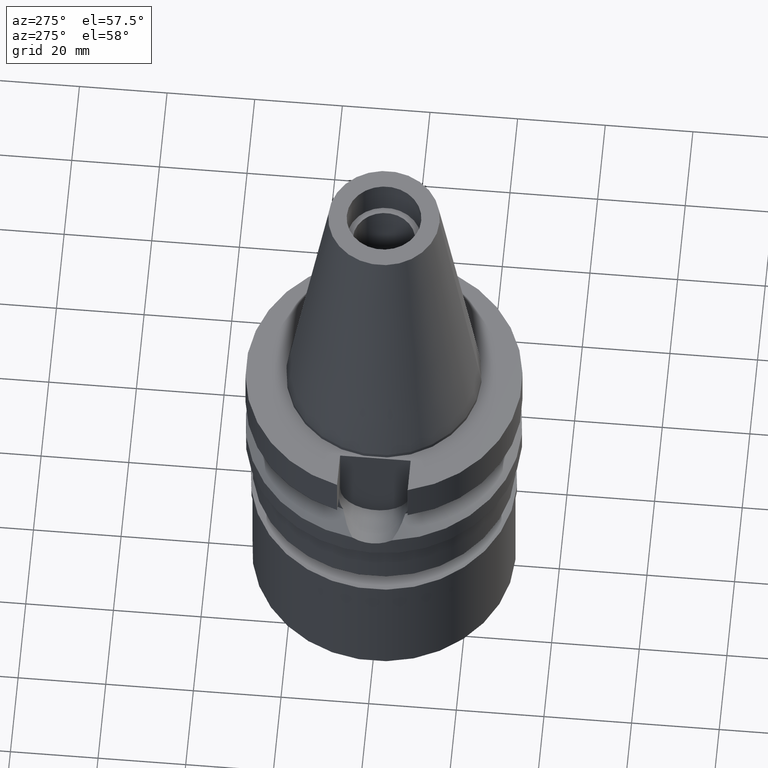
[diagram: clean part render]
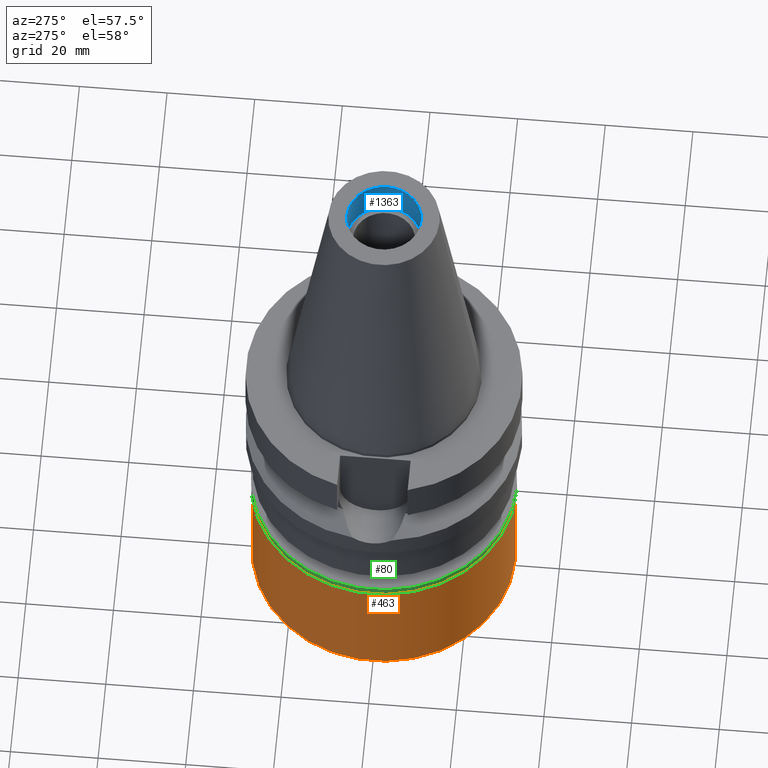
[diagram: same view with three faces highlighted in distinct colors, each labeled with its STEP entity id]
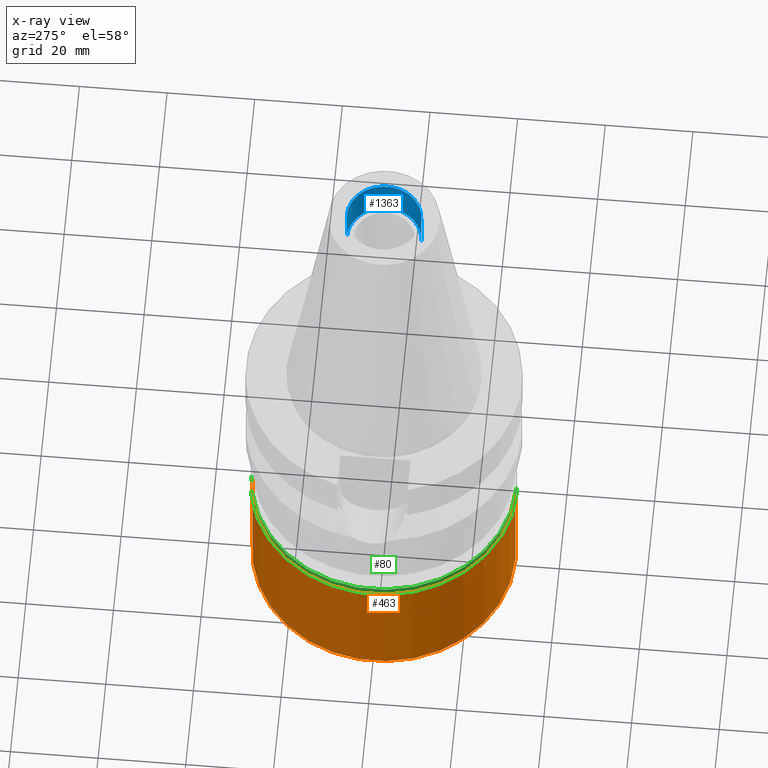
[diagram: x-ray of the same camera — body ghosted, the three highlighted faces saturated]
A machine part, auxiliary view with three faces highlighted in distinct colors.
The next image is the same camera in x-ray (body ghosted, the three faces saturated) — at least one of them is partly hidden behind the body in this view.
Their STEP definitions:

[orange] entity #463 — the highlighted cylindrical surface (partial cylindrical patch) has radius 30 mm, axis along (0, 0, -1).
#134 = DIRECTION ( 'NONE',  ( 0.0000000000000000000, 0.0000000000000000000, 1.000000000000000000 ) ) ;
#184 = ORIENTED_EDGE ( 'NONE', *, *, #843, .T. ) ;
#332 = EDGE_LOOP ( 'NONE', ( #184, #2122, #925, #2883 ) ) ;
#439 = VERTEX_POINT ( 'NONE', #2187 ) ;
#463 = ADVANCED_FACE ( 'NONE', ( #2403 ), #1677, .T. ) ;
#484 = CARTESIAN_POINT ( 'NONE',  ( 0.0000000000000000000, 30.00000000000000000, -30.80000000000000071 ) ) ;
#492 = VERTEX_POINT ( 'NONE', #1116 ) ;
#518 = AXIS2_PLACEMENT_3D ( 'NONE', #1457, #2164, #820 ) ;
#566 = AXIS2_PLACEMENT_3D ( 'NONE', #2522, #704, #2269 ) ;
#639 = LINE ( 'NONE', #2724, #2911 ) ;
#662 = EDGE_CURVE ( 'NONE', #492, #439, #1420, .T. ) ;
#704 = DIRECTION ( 'NONE',  ( 0.0000000000000000000, 0.0000000000000000000, -1.000000000000000000 ) ) ;
#820 = DIRECTION ( 'NONE',  ( 0.0000000000000000000, -1.000000000000000000, 0.0000000000000000000 ) ) ;
#843 = EDGE_CURVE ( 'NONE', #997, #2358, #1279, .T. ) ;
#873 = DIRECTION ( 'NONE',  ( 0.0000000000000000000, 0.0000000000000000000, -1.000000000000000000 ) ) ;
#925 = ORIENTED_EDGE ( 'NONE', *, *, #662, .T. ) ;
#997 = VERTEX_POINT ( 'NONE', #484 ) ;
#1116 = CARTESIAN_POINT ( 'NONE',  ( 0.0000000000000000000, -30.00000000000000000, -2.299999999999999822 ) ) ;
#1279 = CIRCLE ( 'NONE', #2970, 30.00000000000000000 ) ;
#1328 = DIRECTION ( 'NONE',  ( 0.0000000000000000000, 1.000000000000000000, 0.0000000000000000000 ) ) ;
#1420 = CIRCLE ( 'NONE', #566, 30.00000000000000000 ) ;
#1457 = CARTESIAN_POINT ( 'NONE',  ( 0.0000000000000000000, 0.0000000000000000000, 0.0000000000000000000 ) ) ;
#1677 = CYLINDRICAL_SURFACE ( 'NONE', #518, 30.00000000000000000 ) ;
#1785 = DIRECTION ( 'NONE',  ( 0.0000000000000000000, 0.0000000000000000000, -1.000000000000000000 ) ) ;
#1883 = LINE ( 'NONE', #2683, #2961 ) ;
#2122 = ORIENTED_EDGE ( 'NONE', *, *, #2639, .F. ) ;
#2164 = DIRECTION ( 'NONE',  ( 0.0000000000000000000, 0.0000000000000000000, -1.000000000000000000 ) ) ;
#2187 = CARTESIAN_POINT ( 'NONE',  ( 0.0000000000000000000, 30.00000000000000000, -2.299999999999999822 ) ) ;
#2244 = CARTESIAN_POINT ( 'NONE',  ( 0.0000000000000000000, 0.0000000000000000000, -30.80000000000000071 ) ) ;
#2269 = DIRECTION ( 'NONE',  ( 0.0000000000000000000, -1.000000000000000000, 0.0000000000000000000 ) ) ;
#2358 = VERTEX_POINT ( 'NONE', #2430 ) ;
#2403 = FACE_OUTER_BOUND ( 'NONE', #332, .T. ) ;
#2430 = CARTESIAN_POINT ( 'NONE',  ( 0.0000000000000000000, -30.00000000000000000, -30.80000000000000071 ) ) ;
#2445 = EDGE_CURVE ( 'NONE', #439, #997, #639, .T. ) ;
#2522 = CARTESIAN_POINT ( 'NONE',  ( 0.0000000000000000000, 0.0000000000000000000, -2.299999999999999822 ) ) ;
#2639 = EDGE_CURVE ( 'NONE', #492, #2358, #1883, .T. ) ;
#2683 = CARTESIAN_POINT ( 'NONE',  ( 0.0000000000000000000, -30.00000000000000000, -2.299999999999999822 ) ) ;
#2724 = CARTESIAN_POINT ( 'NONE',  ( 0.0000000000000000000, 30.00000000000000000, -2.299999999999999822 ) ) ;
#2883 = ORIENTED_EDGE ( 'NONE', *, *, #2445, .T. ) ;
#2911 = VECTOR ( 'NONE', #1785, 1000.000000000000000 ) ;
#2961 = VECTOR ( 'NONE', #873, 1000.000000000000000 ) ;
#2970 = AXIS2_PLACEMENT_3D ( 'NONE', #2244, #134, #1328 ) ;

[blue] entity #1363 — the highlighted cylindrical surface (partial cylindrical patch) has radius 8.5 mm, axis along (0, 0, -1).
#86 = DIRECTION ( 'NONE',  ( 0.0000000000000000000, -1.000000000000000000, 0.0000000000000000000 ) ) ;
#114 = EDGE_CURVE ( 'NONE', #2087, #1772, #952, .T. ) ;
#168 = ORIENTED_EDGE ( 'NONE', *, *, #2642, .T. ) ;
#180 = LINE ( 'NONE', #826, #1348 ) ;
#267 = CARTESIAN_POINT ( 'NONE',  ( 0.0000000000000000000, 0.0000000000000000000, 0.0000000000000000000 ) ) ;
#271 = DIRECTION ( 'NONE',  ( 0.0000000000000000000, 1.000000000000000000, 0.0000000000000000000 ) ) ;
#285 = EDGE_LOOP ( 'NONE', ( #1554, #168, #2180, #2485 ) ) ;
#310 = DIRECTION ( 'NONE',  ( 0.0000000000000000000, 0.0000000000000000000, 1.000000000000000000 ) ) ;
#354 = VECTOR ( 'NONE', #2398, 1000.000000000000000 ) ;
#456 = CARTESIAN_POINT ( 'NONE',  ( 0.0000000000000000000, 0.0000000000000000000, 56.39999999999999858 ) ) ;
#493 = FACE_OUTER_BOUND ( 'NONE', #285, .T. ) ;
#651 = CARTESIAN_POINT ( 'NONE',  ( 0.0000000000000000000, -8.500000000000000000, 56.39999999999999858 ) ) ;
#702 = CIRCLE ( 'NONE', #1637, 8.500000000000000000 ) ;
#744 = DIRECTION ( 'NONE',  ( 0.0000000000000000000, 0.0000000000000000000, -1.000000000000000000 ) ) ;
#826 = CARTESIAN_POINT ( 'NONE',  ( 0.0000000000000000000, 8.500000000000000000, 56.39999999999999858 ) ) ;
#898 = AXIS2_PLACEMENT_3D ( 'NONE', #456, #744, #271 ) ;
#952 = CIRCLE ( 'NONE', #898, 8.500000000000000000 ) ;
#1108 = CARTESIAN_POINT ( 'NONE',  ( 0.0000000000000000000, -8.500000000000000000, 65.40000000000000568 ) ) ;
#1183 = DIRECTION ( 'NONE',  ( 0.0000000000000000000, -1.000000000000000000, 0.0000000000000000000 ) ) ;
#1185 = EDGE_CURVE ( 'NONE', #2087, #2515, #180, .T. ) ;
#1254 = DIRECTION ( 'NONE',  ( 0.0000000000000000000, 0.0000000000000000000, 1.000000000000000000 ) ) ;
#1348 = VECTOR ( 'NONE', #1254, 1000.000000000000000 ) ;
#1363 = ADVANCED_FACE ( 'NONE', ( #493 ), #1406, .F. ) ;
#1365 = CARTESIAN_POINT ( 'NONE',  ( 0.0000000000000000000, 8.500000000000000000, 56.39999999999999858 ) ) ;
#1406 = CYLINDRICAL_SURFACE ( 'NONE', #1588, 8.500000000000000000 ) ;
#1554 = ORIENTED_EDGE ( 'NONE', *, *, #114, .T. ) ;
#1588 = AXIS2_PLACEMENT_3D ( 'NONE', #267, #2321, #1183 ) ;
#1592 = VERTEX_POINT ( 'NONE', #1108 ) ;
#1637 = AXIS2_PLACEMENT_3D ( 'NONE', #2826, #310, #86 ) ;
#1772 = VERTEX_POINT ( 'NONE', #2373 ) ;
#2087 = VERTEX_POINT ( 'NONE', #1365 ) ;
#2154 = EDGE_CURVE ( 'NONE', #1592, #2515, #702, .T. ) ;
#2180 = ORIENTED_EDGE ( 'NONE', *, *, #2154, .T. ) ;
#2321 = DIRECTION ( 'NONE',  ( 0.0000000000000000000, 0.0000000000000000000, -1.000000000000000000 ) ) ;
#2373 = CARTESIAN_POINT ( 'NONE',  ( 0.0000000000000000000, -8.500000000000000000, 56.39999999999999858 ) ) ;
#2398 = DIRECTION ( 'NONE',  ( 0.0000000000000000000, 0.0000000000000000000, 1.000000000000000000 ) ) ;
#2425 = LINE ( 'NONE', #651, #354 ) ;
#2485 = ORIENTED_EDGE ( 'NONE', *, *, #1185, .F. ) ;
#2515 = VERTEX_POINT ( 'NONE', #2620 ) ;
#2620 = CARTESIAN_POINT ( 'NONE',  ( 0.0000000000000000000, 8.500000000000000000, 65.40000000000000568 ) ) ;
#2642 = EDGE_CURVE ( 'NONE', #1772, #1592, #2425, .T. ) ;
#2826 = CARTESIAN_POINT ( 'NONE',  ( 0.0000000000000000000, 0.0000000000000000000, 65.40000000000000568 ) ) ;

[green] entity #80 — the highlighted cylindrical surface (partial cylindrical patch) has radius 30.35 mm, axis along (0, 0, -1).
#80 = ADVANCED_FACE ( 'NONE', ( #2739 ), #2915, .T. ) ;
#90 = EDGE_LOOP ( 'NONE', ( #1334, #382, #471, #2735 ) ) ;
#171 = DIRECTION ( 'NONE',  ( 0.0000000000000000000, -1.000000000000000000, 0.0000000000000000000 ) ) ;
#272 = CARTESIAN_POINT ( 'NONE',  ( 0.0000000000000000000, 30.34999999999999787, 0.0000000000000000000 ) ) ;
#382 = ORIENTED_EDGE ( 'NONE', *, *, #2213, .F. ) ;
#384 = DIRECTION ( 'NONE',  ( 0.0000000000000000000, 0.0000000000000000000, -1.000000000000000000 ) ) ;
#471 = ORIENTED_EDGE ( 'NONE', *, *, #695, .T. ) ;
#481 = VERTEX_POINT ( 'NONE', #915 ) ;
#517 = DIRECTION ( 'NONE',  ( 0.0000000000000000000, 1.000000000000000000, 0.0000000000000000000 ) ) ;
#661 = AXIS2_PLACEMENT_3D ( 'NONE', #1302, #2226, #171 ) ;
#695 = EDGE_CURVE ( 'NONE', #481, #875, #955, .T. ) ;
#872 = LINE ( 'NONE', #2715, #1177 ) ;
#875 = VERTEX_POINT ( 'NONE', #1525 ) ;
#891 = VECTOR ( 'NONE', #1571, 1000.000000000000000 ) ;
#915 = CARTESIAN_POINT ( 'NONE',  ( 0.0000000000000000000, -30.34999999999999787, 0.0000000000000000000 ) ) ;
#955 = CIRCLE ( 'NONE', #1321, 30.34999999999999787 ) ;
#1010 = CARTESIAN_POINT ( 'NONE',  ( 0.0000000000000000000, 0.0000000000000000000, -1.949999999999999956 ) ) ;
#1145 = EDGE_CURVE ( 'NONE', #2482, #1497, #2369, .T. ) ;
#1177 = VECTOR ( 'NONE', #384, 1000.000000000000000 ) ;
#1302 = CARTESIAN_POINT ( 'NONE',  ( 0.0000000000000000000, 0.0000000000000000000, 0.0000000000000000000 ) ) ;
#1321 = AXIS2_PLACEMENT_3D ( 'NONE', #2603, #1452, #1644 ) ;
#1334 = ORIENTED_EDGE ( 'NONE', *, *, #1145, .T. ) ;
#1452 = DIRECTION ( 'NONE',  ( 0.0000000000000000000, 0.0000000000000000000, -1.000000000000000000 ) ) ;
#1462 = DIRECTION ( 'NONE',  ( 0.0000000000000000000, 0.0000000000000000000, 1.000000000000000000 ) ) ;
#1497 = VERTEX_POINT ( 'NONE', #2951 ) ;
#1525 = CARTESIAN_POINT ( 'NONE',  ( 0.0000000000000000000, 30.34999999999999787, 0.0000000000000000000 ) ) ;
#1571 = DIRECTION ( 'NONE',  ( 0.0000000000000000000, 0.0000000000000000000, -1.000000000000000000 ) ) ;
#1625 = LINE ( 'NONE', #272, #891 ) ;
#1627 = CARTESIAN_POINT ( 'NONE',  ( 0.0000000000000000000, 30.34999999999999787, -1.949999999999999956 ) ) ;
#1644 = DIRECTION ( 'NONE',  ( 0.0000000000000000000, -1.000000000000000000, 0.0000000000000000000 ) ) ;
#2068 = EDGE_CURVE ( 'NONE', #875, #2482, #1625, .T. ) ;
#2213 = EDGE_CURVE ( 'NONE', #481, #1497, #872, .T. ) ;
#2226 = DIRECTION ( 'NONE',  ( 0.0000000000000000000, 0.0000000000000000000, -1.000000000000000000 ) ) ;
#2266 = AXIS2_PLACEMENT_3D ( 'NONE', #1010, #1462, #517 ) ;
#2369 = CIRCLE ( 'NONE', #2266, 30.34999999999999787 ) ;
#2482 = VERTEX_POINT ( 'NONE', #1627 ) ;
#2603 = CARTESIAN_POINT ( 'NONE',  ( 0.0000000000000000000, 0.0000000000000000000, 0.0000000000000000000 ) ) ;
#2715 = CARTESIAN_POINT ( 'NONE',  ( 0.0000000000000000000, -30.34999999999999787, 0.0000000000000000000 ) ) ;
#2735 = ORIENTED_EDGE ( 'NONE', *, *, #2068, .T. ) ;
#2739 = FACE_OUTER_BOUND ( 'NONE', #90, .T. ) ;
#2915 = CYLINDRICAL_SURFACE ( 'NONE', #661, 30.34999999999999787 ) ;
#2951 = CARTESIAN_POINT ( 'NONE',  ( 0.0000000000000000000, -30.34999999999999787, -1.949999999999999956 ) ) ;